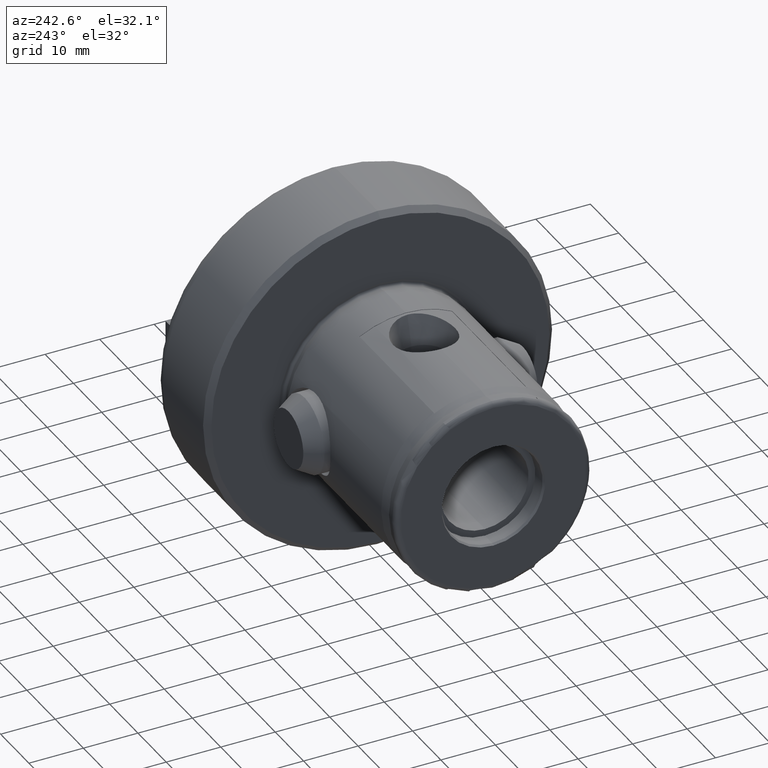
[diagram: clean part render]
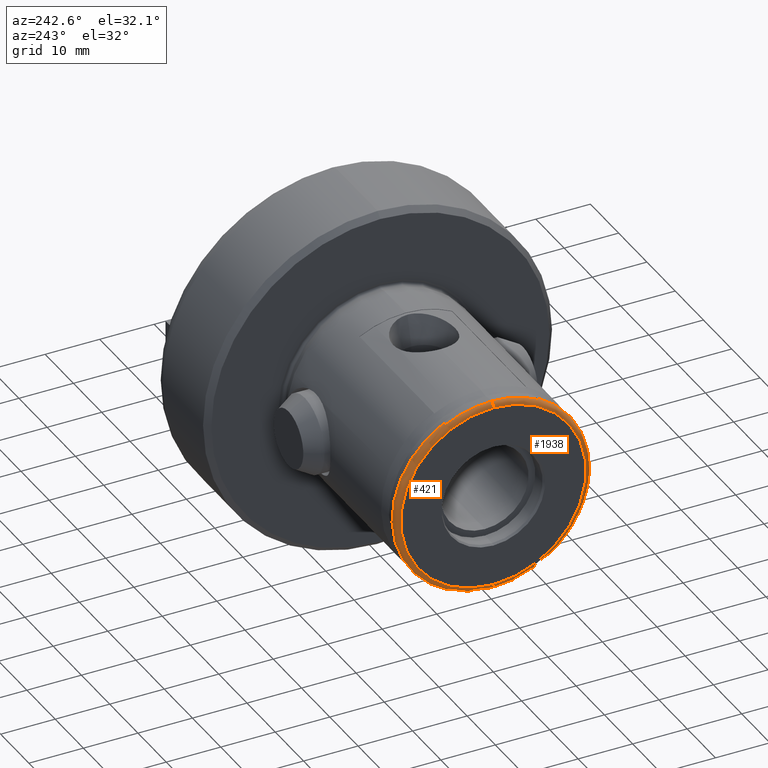
[diagram: same view with one multi-face feature highlighted, each face labeled with its STEP entity id]
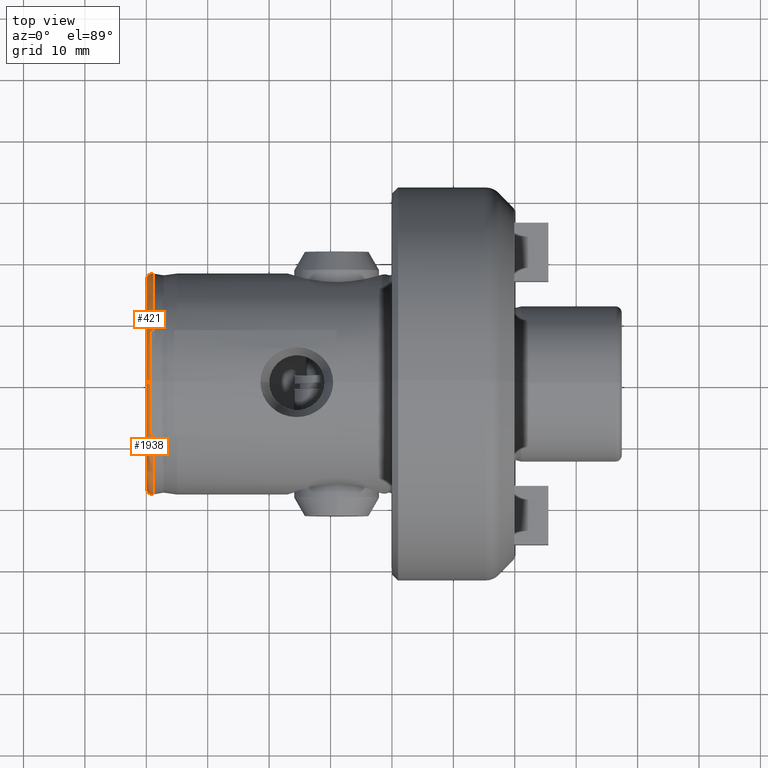
[diagram: same view with one multi-face feature highlighted, each face labeled with its STEP entity id]
A machine part, auxiliary view. The highlighted faces form ONE feature: a constant-radius fillet chain: 2 tangent blend faces with common blend radius 1 mm. The faces share edges in the B-rep.
A second angle (top view) of the same feature is appended — it is thin or edge-on in the first view.
Their STEP definitions:
[1] entity #421 (Torus):
#12 = CARTESIAN_POINT ( 'NONE',  ( 1.173648177666930300, 2.202503724800689100E-015, -17.98480775301219800 ) ) ;
#19 = CARTESIAN_POINT ( 'NONE',  ( 1.301042606982605300E-015, 2.142201641675594700E-015, -16.99999999999999300 ) ) ;
#52 = CARTESIAN_POINT ( 'NONE',  ( 1.301042606982605300E-015, 0.0000000000000000000, 16.99999999999999300 ) ) ;
#68 = CARTESIAN_POINT ( 'NONE',  ( 0.6324404810102394200, 1.084901609420196100E-011, 17.93000000000000000 ) ) ;
#114 = CIRCLE ( 'NONE', #121, 0.9999999999999974500 ) ;
#121 = AXIS2_PLACEMENT_3D ( 'NONE', #703, #704, #705 ) ;
#309 = CIRCLE ( 'NONE', #348, 16.99999999999999300 ) ;
#348 = AXIS2_PLACEMENT_3D ( 'NONE', #510, #511, #512 ) ;
#350 = CIRCLE ( 'NONE', #355, 17.98480775301219800 ) ;
#355 = AXIS2_PLACEMENT_3D ( 'NONE', #587, #588, #589 ) ;
#371 = CIRCLE ( 'NONE', #373, 0.9999999999999974500 ) ;
#373 = AXIS2_PLACEMENT_3D ( 'NONE', #577, #578, #579 ) ;
#377 = CARTESIAN_POINT ( 'NONE',  ( 1.173648177666930300, 8.500000000000001800, 15.84939462291249900 ) ) ;
#421 = ADVANCED_FACE ( 'NONE', ( #2661 ), #1018, .T. ) ;
#510 = CARTESIAN_POINT ( 'NONE',  ( 1.301042606982605300E-015, 0.0000000000000000000, 0.0000000000000000000 ) ) ;
#511 = DIRECTION ( 'NONE',  ( -1.000000000000000000, -0.0000000000000000000, -0.0000000000000000000 ) ) ;
#512 = DIRECTION ( 'NONE',  ( 0.0000000000000000000, 0.0000000000000000000, 1.000000000000000000 ) ) ;
#577 = CARTESIAN_POINT ( 'NONE',  ( 1.000000000000000000, 0.0000000000000000000, 16.99999999999999300 ) ) ;
#578 = DIRECTION ( 'NONE',  ( 0.0000000000000000000, -1.000000000000000000, 0.0000000000000000000 ) ) ;
#579 = DIRECTION ( 'NONE',  ( 0.0000000000000000000, 0.0000000000000000000, -1.000000000000000000 ) ) ;
#587 = CARTESIAN_POINT ( 'NONE',  ( 1.173648177666930300, 0.0000000000000000000, 0.0000000000000000000 ) ) ;
#588 = DIRECTION ( 'NONE',  ( -1.000000000000000000, -0.0000000000000000000, -0.0000000000000000000 ) ) ;
#589 = DIRECTION ( 'NONE',  ( 0.0000000000000000000, 0.0000000000000000000, 1.000000000000000000 ) ) ;
#703 = CARTESIAN_POINT ( 'NONE',  ( 1.000000000000000000, 2.081899558550499900E-015, -16.99999999999999300 ) ) ;
#704 = DIRECTION ( 'NONE',  ( -0.0000000000000000000, 1.000000000000000000, 1.224646799147353200E-016 ) ) ;
#705 = DIRECTION ( 'NONE',  ( 0.0000000000000000000, -1.224646799147353700E-016, 1.000000000000000000 ) ) ;
#709 = CARTESIAN_POINT ( 'NONE',  ( 0.6542505968227946300, 8.500000000000001800, 15.79663165262242700 ) ) ;
#721 = CARTESIAN_POINT ( 'NONE',  ( 1.173648177666930300, 8.500000000000001800, 15.84939462291249900 ) ) ;
#722 = CARTESIAN_POINT ( 'NONE',  ( 1.087489751224860900, 8.500000000000003600, 15.86663352689551800 ) ) ;
#726 = CARTESIAN_POINT ( 'NONE',  ( 0.6505351002739575600, 7.845101723602740100, 16.14747078919852500 ) ) ;
#727 = CARTESIAN_POINT ( 'NONE',  ( 0.9981222527496900200, 8.500000000000003600, 15.87105069833618200 ) ) ;
#728 = CARTESIAN_POINT ( 'NONE',  ( 0.8221058920410904100, 8.500000000000001800, 15.85302790466864800 ) ) ;
#729 = CARTESIAN_POINT ( 'NONE',  ( 0.7363995605874896800, 8.500000000000001800, 15.83100539435132800 ) ) ;
#730 = CARTESIAN_POINT ( 'NONE',  ( 0.6542505968227946300, 8.500000000000001800, 15.79663165262242700 ) ) ;
#732 = CARTESIAN_POINT ( 'NONE',  ( 0.6473197686636039700, 7.169162838992922300, 16.45733664270533600 ) ) ;
#733 = CARTESIAN_POINT ( 'NONE',  ( 0.6418423092002324400, 5.785599335574096000, 16.99096693161065000 ) ) ;
#734 = CARTESIAN_POINT ( 'NONE',  ( 0.6396017394597263200, 5.084105004543580700, 17.21261888832962900 ) ) ;
#735 = CARTESIAN_POINT ( 'NONE',  ( 0.6360243831397884900, 3.662361259201910800, 17.56871166904120700 ) ) ;
#736 = CARTESIAN_POINT ( 'NONE',  ( 0.6346880122386193700, 2.942110066759029000, 17.70314422804933600 ) ) ;
#737 = CARTESIAN_POINT ( 'NONE',  ( 0.6333432282314102000, 1.847521542121688400, 17.83870824488434400 ) ) ;
#738 = CARTESIAN_POINT ( 'NONE',  ( 0.6330054133423558300, 1.480283589093579000, 17.87285194226907200 ) ) ;
#739 = CARTESIAN_POINT ( 'NONE',  ( 0.6325534606832645700, 0.7409511913278217200, 17.91855654738308700 ) ) ;
#740 = CARTESIAN_POINT ( 'NONE',  ( 0.6324404810102417500, 0.3691144895278956600, 17.92999999999978300 ) ) ;
#741 = CARTESIAN_POINT ( 'NONE',  ( 0.6324404810102394200, 1.084901609420196100E-011, 17.93000000000000000 ) ) ;
#1018 = TOROIDAL_SURFACE ( 'NONE', #1021, 16.99999999999999300, 0.9999999999999986700 ) ;
#1021 = AXIS2_PLACEMENT_3D ( 'NONE', #2723, #2654, #2686 ) ;
#1577 = VERTEX_POINT ( 'NONE', #52 ) ;
#1587 = VERTEX_POINT ( 'NONE', #12 ) ;
#1589 = VERTEX_POINT ( 'NONE', #68 ) ;
#1597 = VERTEX_POINT ( 'NONE', #19 ) ;
#1612 = VERTEX_POINT ( 'NONE', #1894 ) ;
#1620 = VERTEX_POINT ( 'NONE', #377 ) ;
#1798 = ORIENTED_EDGE ( 'NONE', *, *, #2052, .T. ) ;
#1824 = ORIENTED_EDGE ( 'NONE', *, *, #2021, .F. ) ;
#1832 = ORIENTED_EDGE ( 'NONE', *, *, #2040, .F. ) ;
#1844 = ORIENTED_EDGE ( 'NONE', *, *, #2058, .F. ) ;
#1863 = ORIENTED_EDGE ( 'NONE', *, *, #2059, .F. ) ;
#1874 = ORIENTED_EDGE ( 'NONE', *, *, #2043, .T. ) ;
#1894 = CARTESIAN_POINT ( 'NONE',  ( 0.6542505968227946300, 8.500000000000001800, 15.79663165262242700 ) ) ;
#2021 = EDGE_CURVE ( 'NONE', #1577, #1597, #309, .T. ) ;
#2040 = EDGE_CURVE ( 'NONE', #1589, #1577, #371, .T. ) ;
#2043 = EDGE_CURVE ( 'NONE', #1620, #1587, #350, .T. ) ;
#2052 = EDGE_CURVE ( 'NONE', #1587, #1597, #114, .T. ) ;
#2058 = EDGE_CURVE ( 'NONE', #1620, #1612, #2495, .T. ) ;
#2059 = EDGE_CURVE ( 'NONE', #1612, #1589, #2513, .T. ) ;
#2495 = B_SPLINE_CURVE_WITH_KNOTS ( 'NONE', 3,
 ( #721, #722, #727, #728, #729, #730 ),
 .UNSPECIFIED., .F., .F.,
 ( 4, 2, 4 ),
 ( 0.006068213492623650500, 0.006330788072026511000, 0.006593362651429371600 ),
 .UNSPECIFIED. ) ;
#2513 = B_SPLINE_CURVE_WITH_KNOTS ( 'NONE', 3,
 ( #709, #726, #732, #733, #734, #735, #736, #737, #738, #739, #740, #741 ),
 .UNSPECIFIED., .F., .F.,
 ( 4, 2, 2, 2, 2, 4 ),
 ( 2.265434088413060900E-007, 0.002225663129928729400, 0.004451099716448617500, 0.006676536302968505600, 0.007789254596228449200, 0.008901972889488393700 ),
 .UNSPECIFIED. ) ;
#2654 = DIRECTION ( 'NONE',  ( -1.000000000000000000, -0.0000000000000000000, -0.0000000000000000000 ) ) ;
#2661 = FACE_OUTER_BOUND ( 'NONE', #2866, .T. ) ;
#2686 = DIRECTION ( 'NONE',  ( 0.0000000000000000000, 0.0000000000000000000, 1.000000000000000000 ) ) ;
#2723 = CARTESIAN_POINT ( 'NONE',  ( 1.000000000000000000, 0.0000000000000000000, 0.0000000000000000000 ) ) ;
#2866 = EDGE_LOOP ( 'NONE', ( #1874, #1798, #1824, #1832, #1863, #1844 ) ) ;
[2] entity #1938 (Torus):
#12 = CARTESIAN_POINT ( 'NONE',  ( 1.173648177666930300, 2.202503724800689100E-015, -17.98480775301219800 ) ) ;
#19 = CARTESIAN_POINT ( 'NONE',  ( 1.301042606982605300E-015, 2.142201641675594700E-015, -16.99999999999999300 ) ) ;
#52 = CARTESIAN_POINT ( 'NONE',  ( 1.301042606982605300E-015, 0.0000000000000000000, 16.99999999999999300 ) ) ;
#68 = CARTESIAN_POINT ( 'NONE',  ( 0.6324404810102394200, 1.084901609420196100E-011, 17.93000000000000000 ) ) ;
#114 = CIRCLE ( 'NONE', #121, 0.9999999999999974500 ) ;
#121 = AXIS2_PLACEMENT_3D ( 'NONE', #703, #704, #705 ) ;
#205 = CIRCLE ( 'NONE', #277, 16.99999999999999300 ) ;
#277 = AXIS2_PLACEMENT_3D ( 'NONE', #3825, #3826, #3827 ) ;
#312 = CIRCLE ( 'NONE', #331, 17.98480775301219800 ) ;
#331 = AXIS2_PLACEMENT_3D ( 'NONE', #841, #842, #843 ) ;
#371 = CIRCLE ( 'NONE', #373, 0.9999999999999974500 ) ;
#373 = AXIS2_PLACEMENT_3D ( 'NONE', #577, #578, #579 ) ;
#577 = CARTESIAN_POINT ( 'NONE',  ( 1.000000000000000000, 0.0000000000000000000, 16.99999999999999300 ) ) ;
#578 = DIRECTION ( 'NONE',  ( 0.0000000000000000000, -1.000000000000000000, 0.0000000000000000000 ) ) ;
#579 = DIRECTION ( 'NONE',  ( 0.0000000000000000000, 0.0000000000000000000, -1.000000000000000000 ) ) ;
#703 = CARTESIAN_POINT ( 'NONE',  ( 1.000000000000000000, 2.081899558550499900E-015, -16.99999999999999300 ) ) ;
#704 = DIRECTION ( 'NONE',  ( -0.0000000000000000000, 1.000000000000000000, 1.224646799147353200E-016 ) ) ;
#705 = DIRECTION ( 'NONE',  ( 0.0000000000000000000, -1.224646799147353700E-016, 1.000000000000000000 ) ) ;
#841 = CARTESIAN_POINT ( 'NONE',  ( 1.173648177666930300, 0.0000000000000000000, 0.0000000000000000000 ) ) ;
#842 = DIRECTION ( 'NONE',  ( -1.000000000000000000, -0.0000000000000000000, -0.0000000000000000000 ) ) ;
#843 = DIRECTION ( 'NONE',  ( 0.0000000000000000000, 0.0000000000000000000, 1.000000000000000000 ) ) ;
#1036 = TOROIDAL_SURFACE ( 'NONE', #1132, 16.99999999999999300, 0.9999999999999986700 ) ;
#1132 = AXIS2_PLACEMENT_3D ( 'NONE', #2936, #2925, #2939 ) ;
#1497 = VERTEX_POINT ( 'NONE', #1646 ) ;
#1577 = VERTEX_POINT ( 'NONE', #52 ) ;
#1587 = VERTEX_POINT ( 'NONE', #12 ) ;
#1589 = VERTEX_POINT ( 'NONE', #68 ) ;
#1597 = VERTEX_POINT ( 'NONE', #19 ) ;
#1617 = VERTEX_POINT ( 'NONE', #1736 ) ;
#1646 = CARTESIAN_POINT ( 'NONE',  ( 1.173648177666928100, -8.500000000000000000, 15.84939462291252400 ) ) ;
#1736 = CARTESIAN_POINT ( 'NONE',  ( 0.6542505968228119500, -8.499999999999998200, 15.79663165262243400 ) ) ;
#1768 = ORIENTED_EDGE ( 'NONE', *, *, #2052, .F. ) ;
#1788 = ORIENTED_EDGE ( 'NONE', *, *, #2080, .T. ) ;
#1802 = ORIENTED_EDGE ( 'NONE', *, *, #2099, .F. ) ;
#1830 = ORIENTED_EDGE ( 'NONE', *, *, #2040, .T. ) ;
#1833 = ORIENTED_EDGE ( 'NONE', *, *, #2098, .F. ) ;
#1871 = ORIENTED_EDGE ( 'NONE', *, *, #1972, .F. ) ;
#1938 = ADVANCED_FACE ( 'NONE', ( #2935 ), #1036, .T. ) ;
#1972 = EDGE_CURVE ( 'NONE', #1589, #1617, #2492, .T. ) ;
#2040 = EDGE_CURVE ( 'NONE', #1589, #1577, #371, .T. ) ;
#2052 = EDGE_CURVE ( 'NONE', #1587, #1597, #114, .T. ) ;
#2080 = EDGE_CURVE ( 'NONE', #1587, #1497, #312, .T. ) ;
#2098 = EDGE_CURVE ( 'NONE', #1597, #1577, #205, .T. ) ;
#2099 = EDGE_CURVE ( 'NONE', #1617, #1497, #2502, .T. ) ;
#2492 = B_SPLINE_CURVE_WITH_KNOTS ( 'NONE', 3,
 ( #3161, #3162, #3166, #3167, #3168, #3169, #3170, #3171 ),
 .UNSPECIFIED., .F., .F.,
 ( 4, 2, 2, 4 ),
 ( 0.008901972889488393700, 0.01335500574124723900, 0.01558152216712666000, 0.01780803859300608000 ),
 .UNSPECIFIED. ) ;
#2502 = B_SPLINE_CURVE_WITH_KNOTS ( 'NONE', 3,
 ( #3823, #3824, #3828, #3829, #3830, #3831 ),
 .UNSPECIFIED., .F., .F.,
 ( 4, 2, 4 ),
 ( 0.0001466622458616963000, 0.0004103328053952654700, 0.0006740033649288346100 ),
 .UNSPECIFIED. ) ;
#2751 = EDGE_LOOP ( 'NONE', ( #1768, #1788, #1802, #1871, #1830, #1833 ) ) ;
#2925 = DIRECTION ( 'NONE',  ( -1.000000000000000000, -0.0000000000000000000, -0.0000000000000000000 ) ) ;
#2935 = FACE_OUTER_BOUND ( 'NONE', #2751, .T. ) ;
#2936 = CARTESIAN_POINT ( 'NONE',  ( 1.000000000000000000, 0.0000000000000000000, 0.0000000000000000000 ) ) ;
#2939 = DIRECTION ( 'NONE',  ( 0.0000000000000000000, 0.0000000000000000000, 1.000000000000000000 ) ) ;
#3161 = CARTESIAN_POINT ( 'NONE',  ( 0.6324404810102394200, 1.084901609420196100E-011, 17.93000000000000000 ) ) ;
#3162 = CARTESIAN_POINT ( 'NONE',  ( 0.6324404810102310900, -1.477174373625175700, 17.93000000000089100 ) ) ;
#3166 = CARTESIAN_POINT ( 'NONE',  ( 0.6341946138444216600, -2.931739006507350100, 17.75087531868819800 ) ) ;
#3167 = CARTESIAN_POINT ( 'NONE',  ( 0.6395865202884518700, -5.079749327030166100, 17.21412044207524200 ) ) ;
#3168 = CARTESIAN_POINT ( 'NONE',  ( 0.6418628716970348200, -5.791349221315153200, 16.98894936551009800 ) ) ;
#3169 = CARTESIAN_POINT ( 'NONE',  ( 0.6473328774351114800, -7.171914618821857900, 16.45607394266993900 ) ) ;
#3170 = CARTESIAN_POINT ( 'NONE',  ( 0.6505332994144168400, -7.844784301745543900, 16.14764083699741100 ) ) ;
#3171 = CARTESIAN_POINT ( 'NONE',  ( 0.6542505968228119500, -8.499999999999998200, 15.79663165262243400 ) ) ;
#3823 = CARTESIAN_POINT ( 'NONE',  ( 0.6542505968228119500, -8.499999999999998200, 15.79663165262243400 ) ) ;
#3824 = CARTESIAN_POINT ( 'NONE',  ( 0.7353313279269722000, -8.500000000000000000, 15.83055841179797200 ) ) ;
#3825 = CARTESIAN_POINT ( 'NONE',  ( 1.301042606982605300E-015, 0.0000000000000000000, 0.0000000000000000000 ) ) ;
#3826 = DIRECTION ( 'NONE',  ( -1.000000000000000000, -0.0000000000000000000, -0.0000000000000000000 ) ) ;
#3827 = DIRECTION ( 'NONE',  ( 0.0000000000000000000, 0.0000000000000000000, 1.000000000000000000 ) ) ;
#3828 = CARTESIAN_POINT ( 'NONE',  ( 0.8226130981639858700, -8.500000000000000000, 15.85307747733669200 ) ) ;
#3829 = CARTESIAN_POINT ( 'NONE',  ( 0.9975680448668020600, -8.500000000000000000, 15.87099631239577800 ) ) ;
#3830 = CARTESIAN_POINT ( 'NONE',  ( 1.087046924922161000, -8.500000000000000000, 15.86672212925783400 ) ) ;
#3831 = CARTESIAN_POINT ( 'NONE',  ( 1.173648177666928100, -8.500000000000000000, 15.84939462291252400 ) ) ;